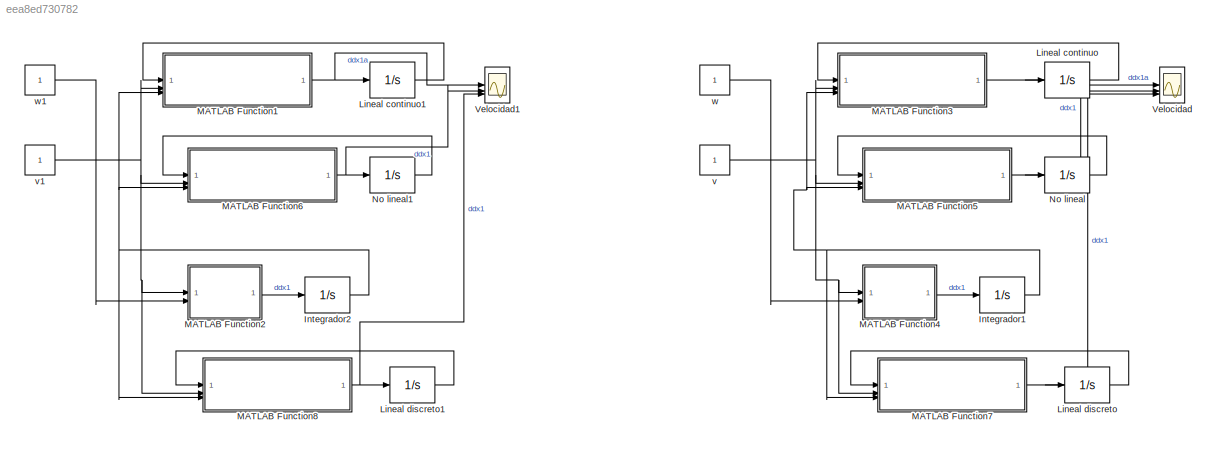
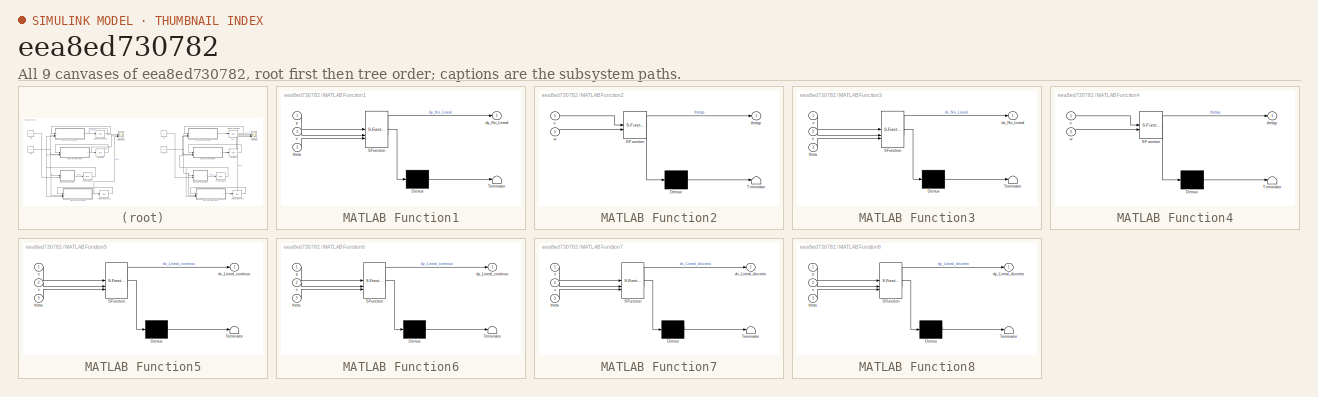
[diagram: thumbnail index - all 9 canvases of the model, root first then tree order]
MODEL slx_eea8ed730782
KIND model
CONFIG AbsTol = auto
CONFIG EnableMultiTasking = off
CONFIG FixedStep = auto
CONFIG MaxStep = auto
CONFIG MinStep = auto
CONFIG RelTol = 1e-3
CONFIG SampleTimeConstraint = Unconstrained
CONFIG SolverName = VariableStepAuto
CONFIG StartTime = 0.0
CONFIG StopTime = 10.0
BLOCK [Integrator] Integrador1
  ContinuousStateAttributes = "dx"
BLOCK [Integrator] Integrador2
  ContinuousStateAttributes = "dx"
BLOCK [Integrator] Lineal continuo
  ContinuousStateAttributes = "dx"
BLOCK [Integrator] Lineal continuo1
  ContinuousStateAttributes = "dx"
BLOCK [Integrator] Lineal discreto
  ContinuousStateAttributes = "dx"
BLOCK [Integrator] Lineal discreto1
  ContinuousStateAttributes = "dx"
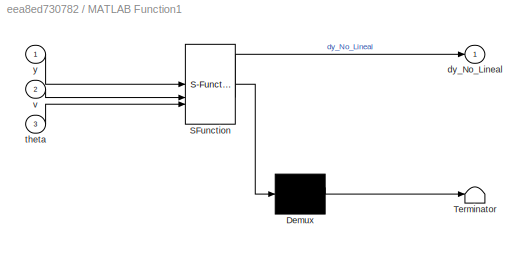
BLOCK [SubSystem] MATLAB Function1
  ErrorFcn = Stateflow.Translate.translate
  LibrarySourceBlock = simulink/User-Defined\nFunctions/MATLAB Function
  PermitHierarchicalResolution = ExplicitOnly
  SFBlockType = MATLAB Function
  TreatAsAtomicUnit = on
BLOCK [Demux] MATLAB Function1/ Demux 
  Outputs = 1
BLOCK [S-Function] MATLAB Function1/ SFunction 
  EnableBusSupport = on
  FunctionName = sf_sfun
  PortCounts = [3 2]
  SFcnIsStateOwnerBlock = off
  SFunctionDeploymentMode = off
  Tag = Stateflow S-Function 1
BLOCK [Terminator] MATLAB Function1/ Terminator 
BLOCK [Outport] MATLAB Function1/dy_No_Lineal
BLOCK [Inport] MATLAB Function1/theta
  Port = 3
BLOCK [Inport] MATLAB Function1/v
  Port = 2
BLOCK [Inport] MATLAB Function1/y
BLOCK [SubSystem] MATLAB Function2
  ErrorFcn = Stateflow.Translate.translate
  LibrarySourceBlock = simulink/User-Defined\nFunctions/MATLAB Function
  PermitHierarchicalResolution = ExplicitOnly
  SFBlockType = MATLAB Function
  TreatAsAtomicUnit = on
BLOCK [Demux] MATLAB Function2/ Demux 
  Outputs = 1
BLOCK [S-Function] MATLAB Function2/ SFunction 
  EnableBusSupport = on
  FunctionName = sf_sfun
  PortCounts = [2 2]
  SFcnIsStateOwnerBlock = off
  SFunctionDeploymentMode = off
  Tag = Stateflow S-Function 2
BLOCK [Terminator] MATLAB Function2/ Terminator 
BLOCK [Outport] MATLAB Function2/thetap
BLOCK [Inport] MATLAB Function2/v
BLOCK [Inport] MATLAB Function2/w
  Port = 2
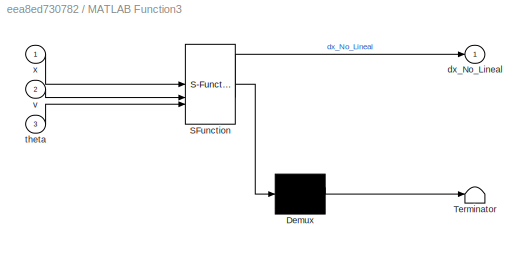
BLOCK [SubSystem] MATLAB Function3
  ErrorFcn = Stateflow.Translate.translate
  LibrarySourceBlock = simulink/User-Defined\nFunctions/MATLAB Function
  PermitHierarchicalResolution = ExplicitOnly
  SFBlockType = MATLAB Function
  TreatAsAtomicUnit = on
BLOCK [Demux] MATLAB Function3/ Demux 
  Outputs = 1
BLOCK [S-Function] MATLAB Function3/ SFunction 
  EnableBusSupport = on
  FunctionName = sf_sfun
  PortCounts = [3 2]
  SFcnIsStateOwnerBlock = off
  SFunctionDeploymentMode = off
  Tag = Stateflow S-Function 4
BLOCK [Terminator] MATLAB Function3/ Terminator 
BLOCK [Outport] MATLAB Function3/dx_No_Lineal
BLOCK [Inport] MATLAB Function3/theta
  Port = 3
BLOCK [Inport] MATLAB Function3/v
  Port = 2
BLOCK [Inport] MATLAB Function3/x
BLOCK [SubSystem] MATLAB Function4
  ErrorFcn = Stateflow.Translate.translate
  LibrarySourceBlock = simulink/User-Defined\nFunctions/MATLAB Function
  PermitHierarchicalResolution = ExplicitOnly
  SFBlockType = MATLAB Function
  TreatAsAtomicUnit = on
BLOCK [Demux] MATLAB Function4/ Demux 
  Outputs = 1
BLOCK [S-Function] MATLAB Function4/ SFunction 
  EnableBusSupport = on
  FunctionName = sf_sfun
  PortCounts = [2 2]
  SFcnIsStateOwnerBlock = off
  SFunctionDeploymentMode = off
  Tag = Stateflow S-Function 5
BLOCK [Terminator] MATLAB Function4/ Terminator 
BLOCK [Outport] MATLAB Function4/thetap
BLOCK [Inport] MATLAB Function4/v
BLOCK [Inport] MATLAB Function4/w
  Port = 2
BLOCK [SubSystem] MATLAB Function5
  ErrorFcn = Stateflow.Translate.translate
  LibrarySourceBlock = simulink/User-Defined\nFunctions/MATLAB Function
  PermitHierarchicalResolution = ExplicitOnly
  SFBlockType = MATLAB Function
  TreatAsAtomicUnit = on
BLOCK [Demux] MATLAB Function5/ Demux 
  Outputs = 1
BLOCK [S-Function] MATLAB Function5/ SFunction 
  EnableBusSupport = on
  FunctionName = sf_sfun
  PortCounts = [3 2]
  SFcnIsStateOwnerBlock = off
  SFunctionDeploymentMode = off
  Tag = Stateflow S-Function 6
BLOCK [Terminator] MATLAB Function5/ Terminator 
BLOCK [Outport] MATLAB Function5/dx_Lineal_continuo
BLOCK [Inport] MATLAB Function5/theta
  Port = 3
BLOCK [Inport] MATLAB Function5/v
  Port = 2
BLOCK [Inport] MATLAB Function5/x
BLOCK [SubSystem] MATLAB Function6
  ErrorFcn = Stateflow.Translate.translate
  LibrarySourceBlock = simulink/User-Defined\nFunctions/MATLAB Function
  PermitHierarchicalResolution = ExplicitOnly
  SFBlockType = MATLAB Function
  TreatAsAtomicUnit = on
BLOCK [Demux] MATLAB Function6/ Demux 
  Outputs = 1
BLOCK [S-Function] MATLAB Function6/ SFunction 
  EnableBusSupport = on
  FunctionName = sf_sfun
  PortCounts = [3 2]
  SFcnIsStateOwnerBlock = off
  SFunctionDeploymentMode = off
  Tag = Stateflow S-Function 3
BLOCK [Terminator] MATLAB Function6/ Terminator 
BLOCK [Outport] MATLAB Function6/dy_Lineal_continuo
BLOCK [Inport] MATLAB Function6/theta
  Port = 3
BLOCK [Inport] MATLAB Function6/v
  Port = 2
BLOCK [Inport] MATLAB Function6/y
BLOCK [SubSystem] MATLAB Function7
  ErrorFcn = Stateflow.Translate.translate
  LibrarySourceBlock = simulink/User-Defined\nFunctions/MATLAB Function
  PermitHierarchicalResolution = ExplicitOnly
  SFBlockType = MATLAB Function
  TreatAsAtomicUnit = on
BLOCK [Demux] MATLAB Function7/ Demux 
  Outputs = 1
BLOCK [S-Function] MATLAB Function7/ SFunction 
  EnableBusSupport = on
  FunctionName = sf_sfun
  PortCounts = [3 2]
  SFcnIsStateOwnerBlock = off
  SFunctionDeploymentMode = off
  Tag = Stateflow S-Function 7
BLOCK [Terminator] MATLAB Function7/ Terminator 
BLOCK [Outport] MATLAB Function7/dx_Lineal_discreto
BLOCK [Inport] MATLAB Function7/theta
  Port = 3
BLOCK [Inport] MATLAB Function7/v
  Port = 2
BLOCK [Inport] MATLAB Function7/x
BLOCK [SubSystem] MATLAB Function8
  ErrorFcn = Stateflow.Translate.translate
  LibrarySourceBlock = simulink/User-Defined\nFunctions/MATLAB Function
  PermitHierarchicalResolution = ExplicitOnly
  SFBlockType = MATLAB Function
  TreatAsAtomicUnit = on
BLOCK [Demux] MATLAB Function8/ Demux 
  Outputs = 1
BLOCK [S-Function] MATLAB Function8/ SFunction 
  EnableBusSupport = on
  FunctionName = sf_sfun
  PortCounts = [3 2]
  SFcnIsStateOwnerBlock = off
  SFunctionDeploymentMode = off
  Tag = Stateflow S-Function 8
BLOCK [Terminator] MATLAB Function8/ Terminator 
BLOCK [Outport] MATLAB Function8/dy_Lineal_discreto
BLOCK [Inport] MATLAB Function8/theta
  Port = 3
BLOCK [Inport] MATLAB Function8/v
  Port = 2
BLOCK [Inport] MATLAB Function8/y
BLOCK [Integrator] No lineal
  ContinuousStateAttributes = "dx"
BLOCK [Integrator] No lineal1
  ContinuousStateAttributes = "dx"
BLOCK [Scope] Velocidad
  Floating = off
  NumInputPorts = 3
  ScopeSpecificationString = Simulink.scopes.TimeScopeBlockCfg('CurrentConfiguration', extmgr.ConfigurationSet(extmgr.Configuration('Core','General UI',true),extmgr.Configuration('Core','Source UI',true),extmgr.Configuration('Sources','WiredSimulink',true,'DataLoggingVariableName','ScopeData1'),extmgr.Configuration('Visuals','Time Domain',true,'SerializedDisplays',{struct('MinYLimReal','-9.58418','MaxYLimReal','7.10959','YLab...<+1484ch>
BLOCK [Scope] Velocidad1
  Floating = off
  NumInputPorts = 3
  ScopeSpecificationString = Simulink.scopes.TimeScopeBlockCfg('CurrentConfiguration', extmgr.ConfigurationSet(extmgr.Configuration('Core','General UI',true),extmgr.Configuration('Core','Source UI',true),extmgr.Configuration('Sources','WiredSimulink',true,'DataLoggingVariableName','ScopeData1'),extmgr.Configuration('Visuals','Time Domain',true,'SerializedDisplays',{struct('MinYLimReal','-9.58418','MaxYLimReal','7.10959','YLab...<+1484ch>
BLOCK [Constant] v
BLOCK [Constant] v1
BLOCK [Constant] w
BLOCK [Constant] w1
NET Integrador1:1 -> MATLAB Function3:3, MATLAB Function5:3, MATLAB Function7:3
NET Integrador2:1 -> MATLAB Function1:3, MATLAB Function6:3, MATLAB Function8:3
LINE Lineal continuo1:1 -> MATLAB Function1:1
LINE Lineal continuo:1 -> MATLAB Function3:1
LINE Lineal discreto1:1 -> MATLAB Function8:1
LINE Lineal discreto:1 -> MATLAB Function7:1
NET MATLAB Function1:1 -> Lineal continuo1:1, Velocidad1:1
LINE MATLAB Function2:1 -> Integrador2:1
NET MATLAB Function3:1 -> Lineal continuo:1, Velocidad:1
LINE MATLAB Function4:1 -> Integrador1:1
NET MATLAB Function5:1 -> No lineal:1, Velocidad:2
NET MATLAB Function6:1 -> No lineal1:1, Velocidad1:2
NET MATLAB Function7:1 -> Lineal discreto:1, Velocidad:3
NET MATLAB Function8:1 -> Lineal discreto1:1, Velocidad1:3
LINE No lineal1:1 -> MATLAB Function6:1
LINE No lineal:1 -> MATLAB Function5:1
NET v1:1 -> MATLAB Function1:2, MATLAB Function2:1, MATLAB Function6:2, MATLAB Function8:2
NET v:1 -> MATLAB Function3:2, MATLAB Function4:1, MATLAB Function5:2, MATLAB Function7:2
LINE w1:1 -> MATLAB Function2:2
LINE w:1 -> MATLAB Function4:2
note: NET lines group one-source signal fan-out (src -> all destinations, sorted); 1:1 wires keep LINE
CHART MATLAB Function1 states=1 transitions=1
  STATE_LABEL 'eML_blk_kernel()'
  STATE_LABEL 'SCRIPT:\nfunction dy_No_Lineal = fcn(y, v, theta)\ndy_No_Lineal= v*sin(theta);\ndy_Lineal_continuo = v*cos(theta)*theta\ndy_Lineal_discreto = y + v*cos(theta)*theta\n'
CHART MATLAB Function2 states=1 transitions=1
  STATE_LABEL 'eML_blk_kernel()'
  STATE_LABEL 'SCRIPT:\nfunction thetap = fcn(v,w)\nr=1;\nw=v/r;\nthetap=w;'
CHART MATLAB Function6 states=1 transitions=1
  STATE_LABEL 'eML_blk_kernel()'
  STATE_LABEL 'SCRIPT:\nfunction dy_Lineal_continuo = fcn(y, v, theta)\ndy_No_Lineal= v*sin(theta);\ndy_Lineal_continuo = v*cos(theta)*theta\ndy_Lineal_discreto = y + v*cos(theta)*theta\n\n'
CHART MATLAB Function3 states=1 transitions=1
  STATE_LABEL 'eML_blk_kernel()'
  STATE_LABEL 'SCRIPT:\nfunction dx_No_Lineal = fcn(x, v, theta)\ndx_No_Lineal= v*cos(theta);\ndx_Lineal_continuo = -v*sin(theta)*theta\ndx_Lineal_discreto = x -v*sin(theta)*theta\n'
CHART MATLAB Function4 states=1 transitions=1
  STATE_LABEL 'eML_blk_kernel()'
  STATE_LABEL 'SCRIPT:\nfunction thetap = fcn(v,w)\nr=1;\nw=v/r;\nthetap=w;'
CHART MATLAB Function5 states=1 transitions=1
  STATE_LABEL 'eML_blk_kernel()'
  STATE_LABEL 'SCRIPT:\nfunction dx_Lineal_continuo = fcn(x, v, theta)\ndx_No_Lineal= v*cos(theta);\ndx_Lineal_continuo = -v*sin(theta)*theta\ndx_Lineal_discreto = x -v*sin(theta)*theta\n'
CHART MATLAB Function7 states=1 transitions=1
  STATE_LABEL 'eML_blk_kernel()'
  STATE_LABEL 'SCRIPT:\nfunction dx_Lineal_discreto = fcn(x, v, theta)\ndx_No_Lineal= v*cos(theta);\ndx_Lineal_continuo = -v*sin(theta)*theta\ndx_Lineal_discreto = x -v*sin(theta)*theta\n'
CHART MATLAB Function8 states=1 transitions=1
  STATE_LABEL 'eML_blk_kernel()'
  STATE_LABEL 'SCRIPT:\nfunction dy_Lineal_discreto = fcn(y, v, theta)\ndy_No_Lineal= v*sin(theta);\ndy_Lineal_continuo = v*cos(theta)*theta\ndy_Lineal_discreto = y + v*cos(theta)*theta\n'
CHART  states=0 transitions=0
CHART  states=0 transitions=0
CHART  states=0 transitions=0
CHART  states=0 transitions=0
CHART  states=0 transitions=0
CHART  states=0 transitions=0
CHART  states=0 transitions=0
CHART  states=0 transitions=0
